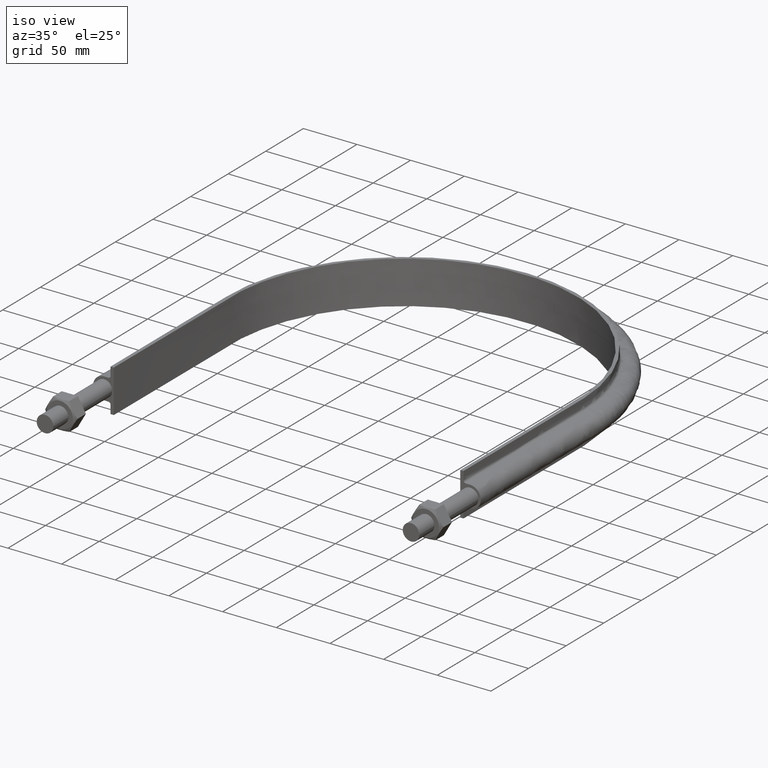
[diagram: clean part render]
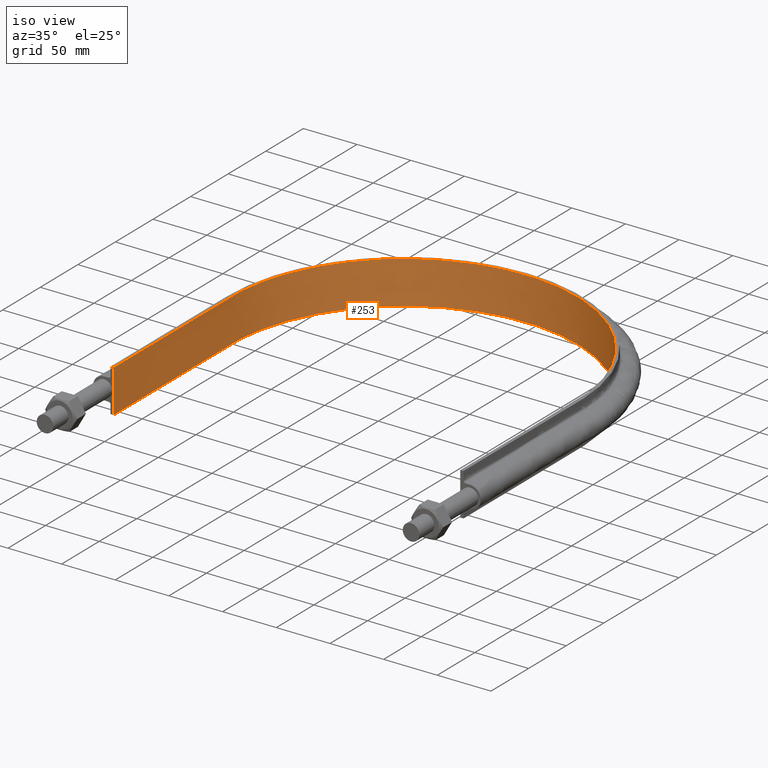
[diagram: tour spotlight — one face highlighted and labeled with its STEP entity id]
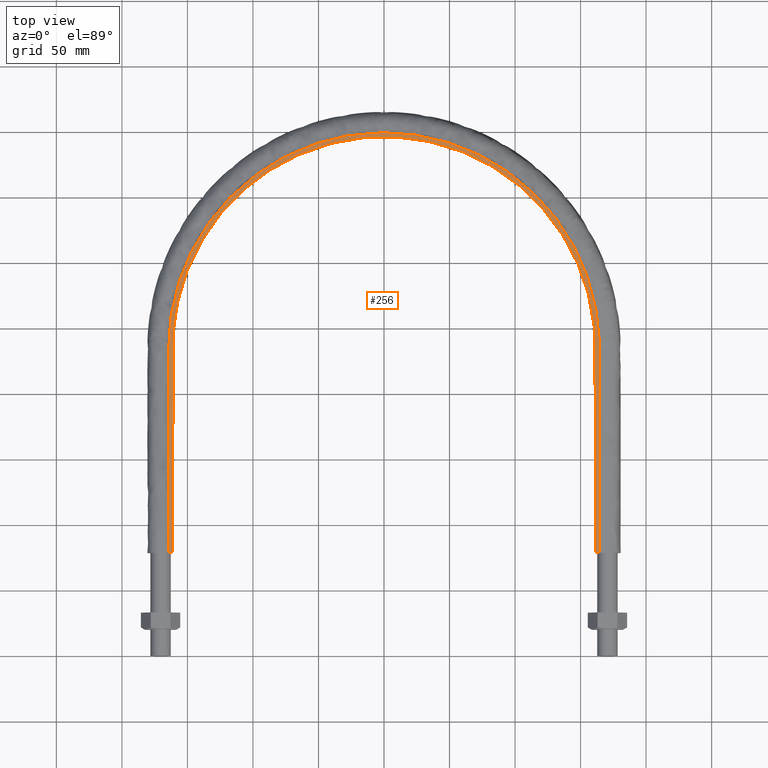
[diagram: tour spotlight — one face highlighted and labeled with its STEP entity id]
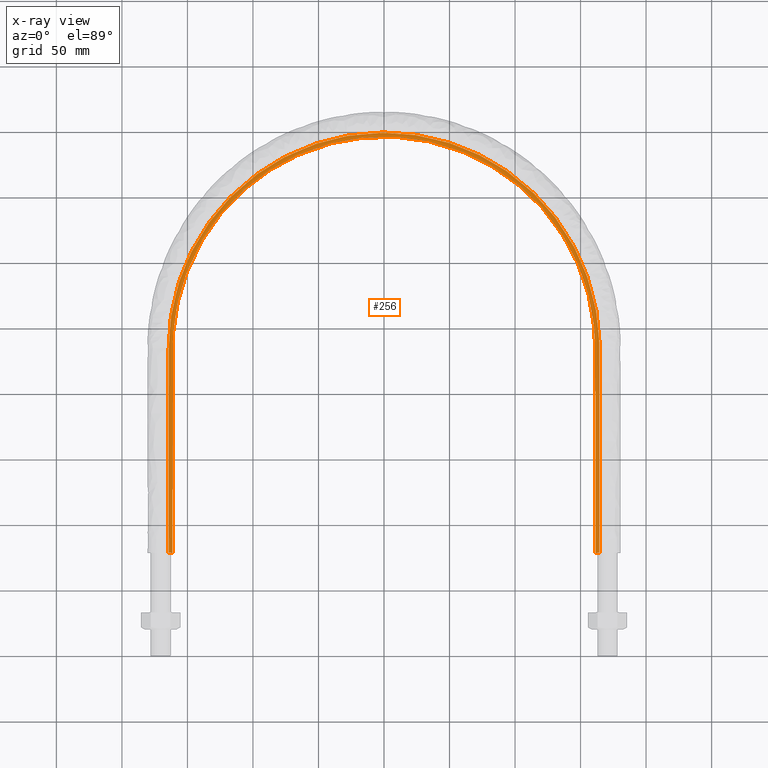
[diagram: x-ray of the same camera — body ghosted, this tour face saturated]
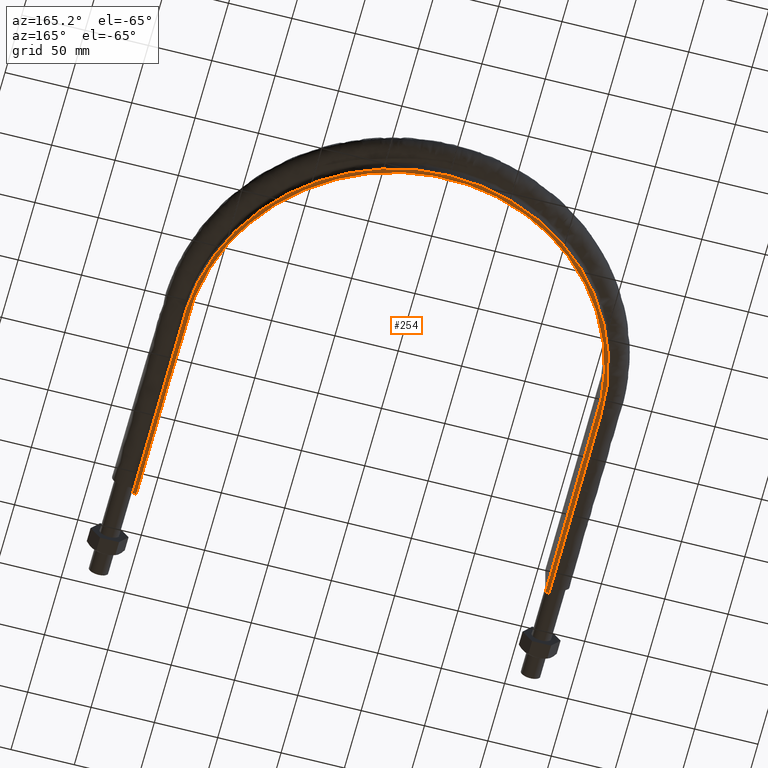
[diagram: tour spotlight — one face highlighted and labeled with its STEP entity id]
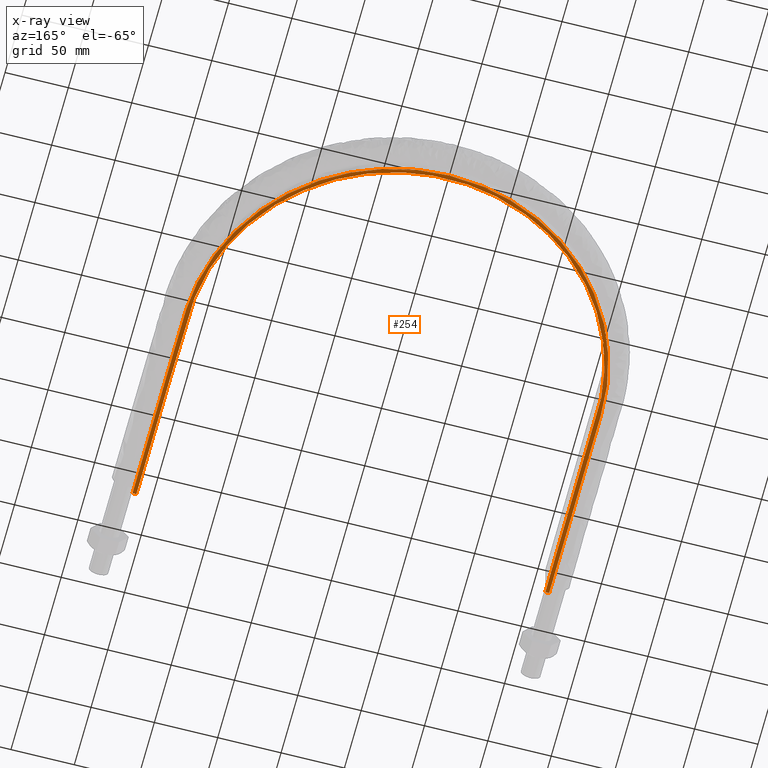
[diagram: x-ray of the same camera — body ghosted, this tour face saturated]
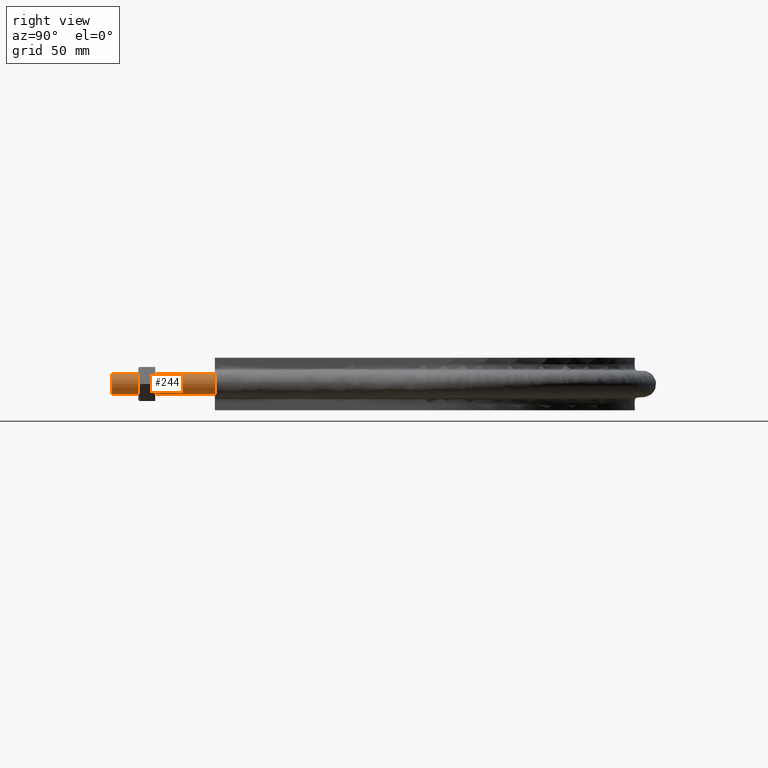
[diagram: tour spotlight — one face highlighted and labeled with its STEP entity id]
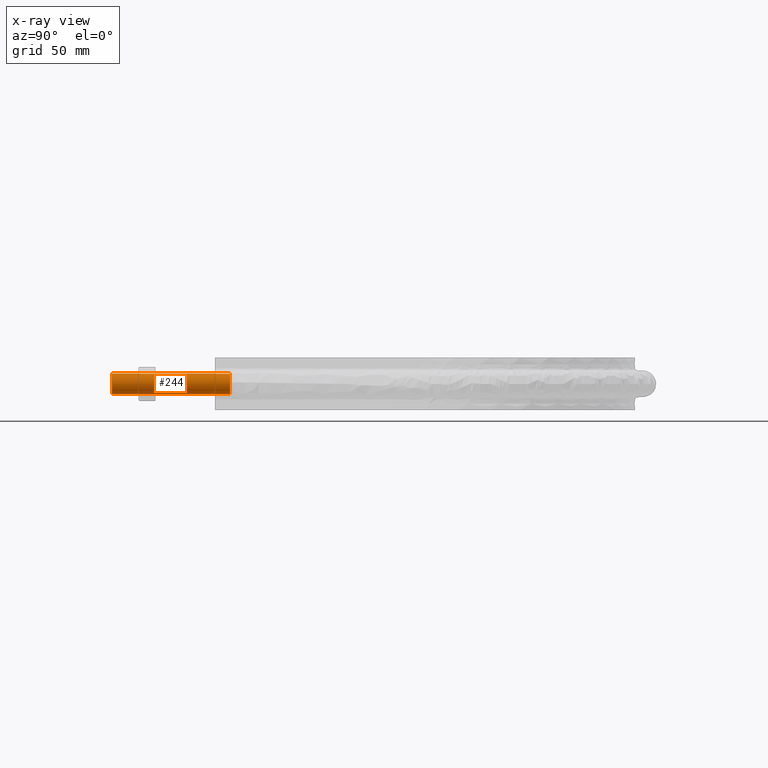
[diagram: x-ray of the same camera — body ghosted, this tour face saturated]
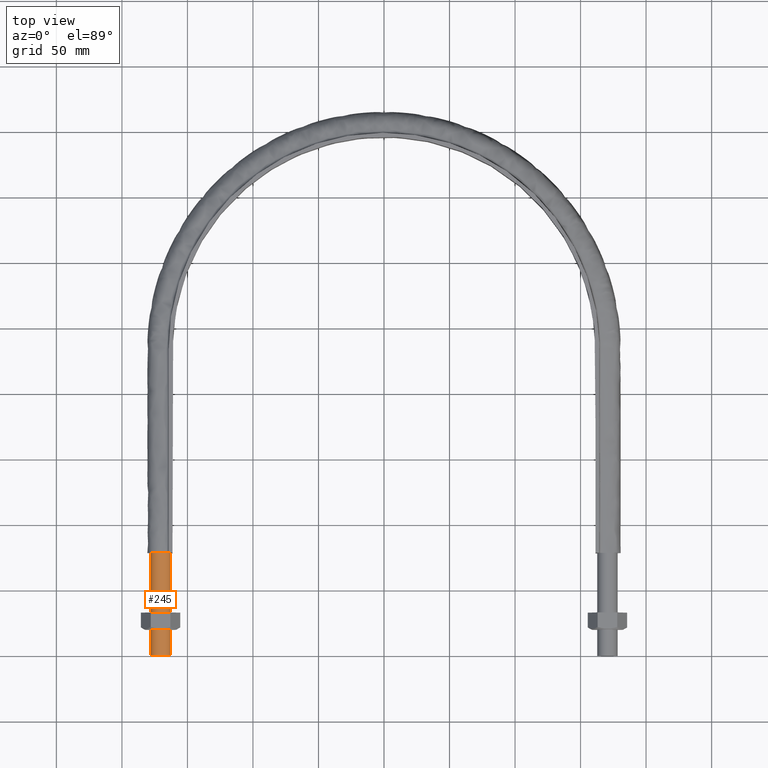
[diagram: tour spotlight — one face highlighted and labeled with its STEP entity id]
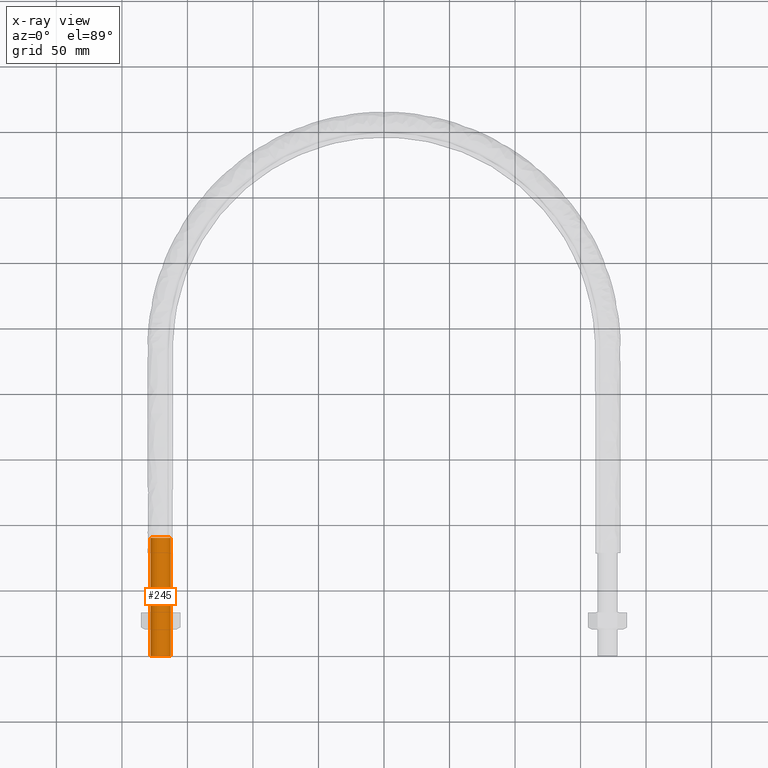
[diagram: x-ray of the same camera — body ghosted, this tour face saturated]
A machine part: a face-by-face anatomy tour. The part has 40 B-rep faces; the first image is the clean iso view, then the 5 largest visible faces are spotlighted one at a time (largest first), each with its STEP entity span.

Face 1 — iso view, entity #253. In plain terms, the highlighted face is a SurfaceOfExtrusion surface.
Definition (entity closure, byte-faithful):
#253 = ADVANCED_FACE( '', ( #347 ), #348, .T. );
#347 = FACE_OUTER_BOUND( '', #842, .T. );
#348 = SURFACE_OF_LINEAR_EXTRUSION( '', #843, #844 );
#842 = EDGE_LOOP( '', ( #1753, #1754, #1755, #1756 ) );
#843 = B_SPLINE_CURVE_WITH_KNOTS( '', 3, ( #1757, #1758, #1759, #1760, #1761, #1762, #1763, #1764, #1765, #1766, #1767, #1768, #1769, #1770, #1771, #1772, #1773, #1774 ), .UNSPECIFIED., .F., .F., ( 4, 3, 1, 1, 1, 1, 1, 1, 1, 1, 3, 4 ), ( -11.0000000000000, -10.0000000000000, -9.00000000000000, -8.00000000000000, -7.00000000000000, -6.00000000000000, -5.00000000000000, -4.00000000000000, -3.00000000000000, -2.00000000000000, -1.00000000000000, 0.000000000000000 ), .UNSPECIFIED. );
#844 = VECTOR( '', #1775, 1000.00000000000 );
#1753 = ORIENTED_EDGE( '', *, *, #1982, .T. );
#1754 = ORIENTED_EDGE( '', *, *, #1983, .F. );
#1755 = ORIENTED_EDGE( '', *, *, #1977, .F. );
#1756 = ORIENTED_EDGE( '', *, *, #1984, .T. );
#1757 = CARTESIAN_POINT( '', ( -161.400000000000, 78.5100000000001, -521.637844225282 ) );
#1758 = CARTESIAN_POINT( '', ( -161.400000000000, 130.543333333333, -521.637844225282 ) );
#1759 = CARTESIAN_POINT( '', ( -161.400000000000, 182.576666666667, -521.637844225282 ) );
#1760 = CARTESIAN_POINT( '', ( -161.400000000000, 234.610000000000, -521.637844225282 ) );
#1761 = CARTESIAN_POINT( '', ( -161.400000000000, 253.377198593415, -521.637844225282 ) );
#1762 = CARTESIAN_POINT( '', ( -154.777803559236, 290.949605256109, -521.637844225282 ) );
#1763 = CARTESIAN_POINT( '', ( -126.176021511748, 340.482890510073, -521.637844225282 ) );
#1764 = CARTESIAN_POINT( '', ( -82.3555491101910, 377.254353924046, -521.637844225282 ) );
#1765 = CARTESIAN_POINT( '', ( -28.6017820474880, 396.818694818595, -521.637844225282 ) );
#1766 = CARTESIAN_POINT( '', ( 28.6017820474882, 396.818694818595, -521.637844225282 ) );
#1767 = CARTESIAN_POINT( '', ( 82.3555491101912, 377.254353924046, -521.637844225282 ) );
#1768 = CARTESIAN_POINT( '', ( 126.176021511748, 340.482890510073, -521.637844225282 ) );
#1769 = CARTESIAN_POINT( '', ( 154.777803559236, 290.949605256109, -521.637844225282 ) );
#1770 = CARTESIAN_POINT( '', ( 161.400000000000, 253.377198593415, -521.637844225282 ) );
#1771 = CARTESIAN_POINT( '', ( 161.400000000000, 234.610000000000, -521.637844225282 ) );
#1772 = CARTESIAN_POINT( '', ( 161.400000000000, 182.576666666667, -521.637844225282 ) );
#1773 = CARTESIAN_POINT( '', ( 161.400000000000, 130.543333333333, -521.637844225282 ) );
#1774 = CARTESIAN_POINT( '', ( 161.400000000000, 78.5100000000000, -521.637844225282 ) );
#1775 = DIRECTION( '', ( 0.000000000000000, 0.000000000000000, 1.00000000000000 ) );
#1977 = EDGE_CURVE( '', #2095, #2096, #2097, .T. );
#1982 = EDGE_CURVE( '', #2104, #2105, #2106, .T. );
#1983 = EDGE_CURVE( '', #2096, #2105, #2107, .T. );
#1984 = EDGE_CURVE( '', #2095, #2104, #2108, .T. );
#2095 = VERTEX_POINT( '', #2566 );
#2096 = VERTEX_POINT( '', #2567 );
#2097 = LINE( '', #2568, #2569 );
#2104 = VERTEX_POINT( '', #2610 );
#2105 = VERTEX_POINT( '', #2611 );
#2106 = LINE( '', #2612, #2613 );
#2107 = B_SPLINE_CURVE_WITH_KNOTS( '', 3, ( #2614, #2615, #2616, #2617, #2618, #2619, #2620, #2621, #2622, #2623, #2624, #2625, #2626, #2627, #2628, #2629, #2630, #2631 ), .UNSPECIFIED., .F., .F., ( 4, 3, 1, 1, 1, 1, 1, 1, 1, 1, 3, 4 ), ( -11.0000000000000, -10.0000000000000, -9.00000000000000, -8.00000000000000, -7.00000000000000, -6.00000000000000, -5.00000000000000, -4.00000000000000, -3.00000000000000, -2.00000000000000, -1.00000000000000, 0.000000000000000 ), .UNSPECIFIED. );
#2108 = B_SPLINE_CURVE_WITH_KNOTS( '', 3, ( #2632, #2633, #2634, #2635, #2636, #2637, #2638, #2639, #2640, #2641, #2642, #2643, #2644, #2645, #2646, #2647, #2648, #2649 ), .UNSPECIFIED., .F., .F., ( 4, 3, 1, 1, 1, 1, 1, 1, 1, 1, 3, 4 ), ( -11.0000000000000, -10.0000000000000, -9.00000000000000, -8.00000000000000, -7.00000000000000, -6.00000000000000, -5.00000000000000, -4.00000000000000, -3.00000000000000, -2.00000000000000, -1.00000000000000, 0.000000000000000 ), .UNSPECIFIED. );
#2566 = CARTESIAN_POINT( '', ( -161.400000000000, 78.5100000000001, -20.0000000000000 ) );
#2567 = CARTESIAN_POINT( '', ( -161.400000000000, 78.5100000000001, 20.0000000000000 ) );
#2568 = CARTESIAN_POINT( '', ( -161.400000000000, 78.5100000000001, -521.637844225282 ) );
#2569 = VECTOR( '', #2999, 1000.00000000000 );
#2610 = CARTESIAN_POINT( '', ( 161.400000000000, 78.5100000000000, -20.0000000000000 ) );
#2611 = CARTESIAN_POINT( '', ( 161.400000000000, 78.5100000000000, 20.0000000000000 ) );
#2612 = CARTESIAN_POINT( '', ( 161.400000000000, 78.5100000000000, -521.637844225282 ) );
#2613 = VECTOR( '', #3003, 1000.00000000000 );
#2614 = CARTESIAN_POINT( '', ( -161.400000000000, 78.5100000000001, 20.0000000000000 ) );
#2615 = CARTESIAN_POINT( '', ( -161.400000000000, 130.543333333333, 20.0000000000000 ) );
#2616 = CARTESIAN_POINT( '', ( -161.400000000000, 182.576666666667, 20.0000000000000 ) );
#2617 = CARTESIAN_POINT( '', ( -161.400000000000, 234.610000000000, 20.0000000000000 ) );
#2618 = CARTESIAN_POINT( '', ( -161.400000000000, 253.377198593415, 20.0000000000000 ) );
#2619 = CARTESIAN_POINT( '', ( -154.777803559236, 290.949605256109, 20.0000000000000 ) );
#2620 = CARTESIAN_POINT( '', ( -126.176021511748, 340.482890510073, 20.0000000000000 ) );
#2621 = CARTESIAN_POINT( '', ( -82.3555491101910, 377.254353924046, 20.0000000000000 ) );
#2622 = CARTESIAN_POINT( '', ( -28.6017820474880, 396.818694818595, 20.0000000000000 ) );
#2623 = CARTESIAN_POINT( '', ( 28.6017820474882, 396.818694818595, 20.0000000000000 ) );
#2624 = CARTESIAN_POINT( '', ( 82.3555491101912, 377.254353924046, 20.0000000000000 ) );
#2625 = CARTESIAN_POINT( '', ( 126.176021511748, 340.482890510073, 20.0000000000000 ) );
#2626 = CARTESIAN_POINT( '', ( 154.777803559236, 290.949605256109, 20.0000000000000 ) );
#2627 = CARTESIAN_POINT( '', ( 161.400000000000, 253.377198593415, 20.0000000000000 ) );
#2628 = CARTESIAN_POINT( '', ( 161.400000000000, 234.610000000000, 20.0000000000000 ) );
#2629 = CARTESIAN_POINT( '', ( 161.400000000000, 182.576666666667, 20.0000000000000 ) );
#2630 = CARTESIAN_POINT( '', ( 161.400000000000, 130.543333333333, 20.0000000000000 ) );
#2631 = CARTESIAN_POINT( '', ( 161.400000000000, 78.5100000000000, 20.0000000000000 ) );
#2632 = CARTESIAN_POINT( '', ( -161.400000000000, 78.5100000000001, -20.0000000000000 ) );
#2633 = CARTESIAN_POINT( '', ( -161.400000000000, 130.543333333333, -20.0000000000000 ) );
#2634 = CARTESIAN_POINT( '', ( -161.400000000000, 182.576666666667, -20.0000000000000 ) );
#2635 = CARTESIAN_POINT( '', ( -161.400000000000, 234.610000000000, -20.0000000000000 ) );
#2636 = CARTESIAN_POINT( '', ( -161.400000000000, 253.377198593415, -20.0000000000000 ) );
#2637 = CARTESIAN_POINT( '', ( -154.777803559236, 290.949605256109, -20.0000000000000 ) );
#2638 = CARTESIAN_POINT( '', ( -126.176021511748, 340.482890510073, -20.0000000000000 ) );
#2639 = CARTESIAN_POINT( '', ( -82.3555491101910, 377.254353924046, -20.0000000000000 ) );
#2640 = CARTESIAN_POINT( '', ( -28.6017820474880, 396.818694818595, -20.0000000000000 ) );
#2641 = CARTESIAN_POINT( '', ( 28.6017820474882, 396.818694818595, -20.0000000000000 ) );
#2642 = CARTESIAN_POINT( '', ( 82.3555491101912, 377.254353924046, -20.0000000000000 ) );
#2643 = CARTESIAN_POINT( '', ( 126.176021511748, 340.482890510073, -20.0000000000000 ) );
#2644 = CARTESIAN_POINT( '', ( 154.777803559236, 290.949605256109, -20.0000000000000 ) );
#2645 = CARTESIAN_POINT( '', ( 161.400000000000, 253.377198593415, -20.0000000000000 ) );
#2646 = CARTESIAN_POINT( '', ( 161.400000000000, 234.610000000000, -20.0000000000000 ) );
#2647 = CARTESIAN_POINT( '', ( 161.400000000000, 182.576666666667, -20.0000000000000 ) );
#2648 = CARTESIAN_POINT( '', ( 161.400000000000, 130.543333333333, -20.0000000000000 ) );
#2649 = CARTESIAN_POINT( '', ( 161.400000000000, 78.5100000000000, -20.0000000000000 ) );
#2999 = DIRECTION( '', ( 0.000000000000000, 0.000000000000000, 1.00000000000000 ) );
#3003 = DIRECTION( '', ( 0.000000000000000, 0.000000000000000, 1.00000000000000 ) );

Face 2 — top view, entity #256. An x-ray twin of the same camera follows (body ghosted, this face saturated) — the face is partly hidden behind the body. In plain terms, the highlighted planar face has unit normal (0, 0, 1).
Definition (entity closure, byte-faithful):
#256 = ADVANCED_FACE( '', ( #353 ), #354, .T. );
#353 = FACE_OUTER_BOUND( '', #850, .T. );
#354 = PLANE( '', #851 );
#850 = EDGE_LOOP( '', ( #1898, #1899, #1900, #1901 ) );
#851 = AXIS2_PLACEMENT_3D( '', #1902, #1903, #1904 );
#1898 = ORIENTED_EDGE( '', *, *, #1978, .T. );
#1899 = ORIENTED_EDGE( '', *, *, #1983, .T. );
#1900 = ORIENTED_EDGE( '', *, *, #1989, .T. );
#1901 = ORIENTED_EDGE( '', *, *, #1973, .F. );
#1902 = CARTESIAN_POINT( '', ( 200.000000000000, 478.510000000000, 20.0000000000000 ) );
#1903 = DIRECTION( '', ( 0.000000000000000, 0.000000000000000, 1.00000000000000 ) );
#1904 = DIRECTION( '', ( 1.00000000000000, 0.000000000000000, 0.000000000000000 ) );
#1973 = EDGE_CURVE( '', #2086, #2088, #2089, .T. );
#1978 = EDGE_CURVE( '', #2086, #2096, #2098, .F. );
#1983 = EDGE_CURVE( '', #2096, #2105, #2107, .T. );
#1989 = EDGE_CURVE( '', #2105, #2088, #2115, .F. );
#2086 = VERTEX_POINT( '', #2405 );
#2088 = VERTEX_POINT( '', #2408 );
#2089 = B_SPLINE_CURVE_WITH_KNOTS( '', 3, ( #2409, #2410, #2411, #2412, #2413, #2414, #2415, #2416, #2417, #2418, #2419, #2420, #2421, #2422, #2423, #2424, #2425, #2426, #2427, #2428, #2429, #2430, #2431, #2432, #2433, #2434, #2435, #2436, #2437, #2438, #2439, #2440, #2441, #2442, #2443, #2444, #2445, #2446, #2447, #2448, #2449, #2450, #2451, #2452, #2453, #2454, #2455, #2456, #2457, #2458, #2459, #2460, #2461, #2462, #2463, #2464, #2465, #2466, #2467, #2468, #2469, #2470, #2471, #2472, #2473, #2474, #2475, #2476, #2477, #2478, #2479, #2480, #2481, #2482, #2483, #2484, #2485, #2486, #2487, #2488, #2489, #2490, #2491, #2492, #2493, #2494, #2495, #2496, #2497, #2498, #2499, #2500, #2501, #2502, #2503, #2504, #2505, #2506, #2507, #2508, #2509, #2510, #2511, #2512, #2513, #2514, #2515, #2516, #2517, #2518, #2519, #2520, #2521, #2522, #2523, #2524, #2525, #2526, #2527, #2528, #2529, #2530, #2531, #2532, #2533, #2534, #2535, #2536, #2537, #2538, #2539 ), .UNSPECIFIED., .F., .F., ( 4, 1, 1, 1, 1, 2, 2, 2, 2, 2, 2, 2, 2, 2, 2, 2, 2, 2, 2, 2, 2, 2, 2, 2, 2, 2, 2, 2, 2, 2, 2, 2, 2, 2, 2, 2, 2, 2, 2, 2, 2, 2, 2, 2, 2, 2, 2, 2, 2, 2, 2, 2, 2, 2, 2, 2, 1, 2, 2, 2, 2, 2, 2, 2, 2, 1, 1, 1, 1, 4 ), ( 0.000000000000000, 0.104054729085104, 0.130068411356380, 0.143075252492018, 0.149578673059837, 0.152830383343746, 0.156082093627656, 0.159333803911565, 0.162585514195475, 0.169088934763294, 0.182095775898932, 0.195102617034570, 0.208109458170209, 0.221116299305847, 0.227619719873666, 0.234123140441485, 0.247129981577123, 0.260136822712762, 0.273143663848400, 0.276395374132309, 0.279647084416219, 0.286150504984038, 0.299157346119676, 0.312164187255314, 0.325171028390952, 0.331674448958772, 0.334926159242681, 0.338177869526591, 0.351184710662229, 0.364191551797868, 0.377198392933506, 0.383701813501326, 0.386953523785235, 0.390205234069145, 0.403212075204783, 0.416218916340422, 0.429225757476060, 0.442232598611699, 0.448736019179518, 0.455239439747338, 0.468246280882976, 0.481253122018615, 0.494259963154253, 0.500763383722072, 0.507266804289892, 0.520273645425530, 0.533280486561169, 0.546287327696808, 0.552790748264627, 0.556042458548537, 0.559294168832446, 0.572301009968085, 0.585307851103724, 0.598314692239363, 0.611321533375002, 0.614573243658912, 0.617824953942821, 0.624328374510641, 0.637335215646280, 0.650342056781918, 0.663348897917557, 0.669852318485376, 0.673104028769286, 0.676355739053196, 0.679607449337105, 0.682859159621015, 0.689362580188834, 0.702369421324473, 0.728383103595750, 0.832437832680860 ), .UNSPECIFIED. );
#2096 = VERTEX_POINT( '', #2567 );
#2098 = LINE( '', #2570, #2571 );
#2105 = VERTEX_POINT( '', #2611 );
#2107 = B_SPLINE_CURVE_WITH_KNOTS( '', 3, ( #2614, #2615, #2616, #2617, #2618, #2619, #2620, #2621, #2622, #2623, #2624, #2625, #2626, #2627, #2628, #2629, #2630, #2631 ), .UNSPECIFIED., .F., .F., ( 4, 3, 1, 1, 1, 1, 1, 1, 1, 1, 3, 4 ), ( -11.0000000000000, -10.0000000000000, -9.00000000000000, -8.00000000000000, -7.00000000000000, -6.00000000000000, -5.00000000000000, -4.00000000000000, -3.00000000000000, -2.00000000000000, -1.00000000000000, 0.000000000000000 ), .UNSPECIFIED. );
#2115 = LINE( '', #2897, #2898 );
#2405 = CARTESIAN_POINT( '', ( -164.400000000000, 78.5100000000001, 20.0000000000000 ) );
#2408 = CARTESIAN_POINT( '', ( 164.400000000000, 78.5099999999999, 20.0000000000000 ) );
#2409 = CARTESIAN_POINT( '', ( -164.400000000000, 78.5100000000001, 20.0000000000000 ) );
#2410 = CARTESIAN_POINT( '', ( -164.400000000000, 113.194956691567, 20.0000000000000 ) );
#2411 = CARTESIAN_POINT( '', ( -164.400000000000, 156.551152556026, 20.0000000000000 ) );
#2412 = CARTESIAN_POINT( '', ( -164.400000000000, 204.242968006930, 20.0000000000000 ) );
#2413 = CARTESIAN_POINT( '', ( -164.400000000000, 219.417636559491, 20.0000000000000 ) );
#2414 = CARTESIAN_POINT( '', ( -164.400000000000, 227.004970835771, 20.0000000000000 ) );
#2415 = CARTESIAN_POINT( '', ( -164.400000000000, 230.256685525605, 20.0000000000000 ) );
#2416 = CARTESIAN_POINT( '', ( -164.400000000000, 232.424495318828, 20.0000000000000 ) );
#2417 = CARTESIAN_POINT( '', ( -164.401112814939, 233.508402047335, 20.0000000000000 ) );
#2418 = CARTESIAN_POINT( '', ( -164.397791436545, 235.676206372966, 20.0000000000000 ) );
#2419 = CARTESIAN_POINT( '', ( -164.389397229220, 236.760097451187, 20.0000000000000 ) );
#2420 = CARTESIAN_POINT( '', ( -164.346347317781, 238.927836376435, 20.0000000000000 ) );
#2421 = CARTESIAN_POINT( '', ( -164.314015247172, 240.011688048584, 20.0000000000000 ) );
#2422 = CARTESIAN_POINT( '', ( -164.184658021981, 243.263189792925, 20.0000000000000 ) );
#2423 = CARTESIAN_POINT( '', ( -164.054986387869, 245.432649531981, 20.0000000000000 ) );
#2424 = CARTESIAN_POINT( '', ( -163.540089866603, 251.903443163607, 20.0000000000000 ) );
#2425 = CARTESIAN_POINT( '', ( -163.028857186242, 256.178647842781, 20.0000000000000 ) );
#2426 = CARTESIAN_POINT( '', ( -161.680784922928, 264.654119101841, 20.0000000000000 ) );
#2427 = CARTESIAN_POINT( '', ( -160.843839994309, 268.854361436529, 20.0000000000000 ) );
#2428 = CARTESIAN_POINT( '', ( -158.845991034650, 277.180287246157, 20.0000000000000 ) );
#2429 = CARTESIAN_POINT( '', ( -157.684954010361, 281.305940112837, 20.0000000000000 ) );
#2430 = CARTESIAN_POINT( '', ( -155.032434907612, 289.481194251215, 20.0000000000000 ) );
#2431 = CARTESIAN_POINT( '', ( -153.540637667279, 293.530722988728, 20.0000000000000 ) );
#2432 = CARTESIAN_POINT( '', ( -151.046446265379, 299.545983905582, 20.0000000000000 ) );
#2433 = CARTESIAN_POINT( '', ( -150.176639375753, 301.530591569500, 20.0000000000000 ) );
#2434 = CARTESIAN_POINT( '', ( -148.365677489265, 305.451034189671, 20.0000000000000 ) );
#2435 = CARTESIAN_POINT( '', ( -147.423966722703, 307.388338955489, 20.0000000000000 ) );
#2436 = CARTESIAN_POINT( '', ( -144.492313373275, 313.132875216610, 20.0000000000000 ) );
#2437 = CARTESIAN_POINT( '', ( -142.395491839972, 316.872502291722, 20.0000000000000 ) );
#2438 = CARTESIAN_POINT( '', ( -137.921089039272, 324.174166757929, 20.0000000000000 ) );
#2439 = CARTESIAN_POINT( '', ( -135.543392362290, 327.736131148699, 20.0000000000000 ) );
#2440 = CARTESIAN_POINT( '', ( -130.504111697184, 334.680491951786, 20.0000000000000 ) );
#2441 = CARTESIAN_POINT( '', ( -127.842299055249, 338.062743733114, 20.0000000000000 ) );
#2442 = CARTESIAN_POINT( '', ( -124.331524748107, 342.174483348528, 20.0000000000000 ) );
#2443 = CARTESIAN_POINT( '', ( -123.620193252737, 342.991026751503, 20.0000000000000 ) );
#2444 = CARTESIAN_POINT( '', ( -122.179027254969, 344.612409802347, 20.0000000000000 ) );
#2445 = CARTESIAN_POINT( '', ( -121.449202472701, 345.417189981231, 20.0000000000000 ) );
#2446 = CARTESIAN_POINT( '', ( -119.241901422656, 347.803147571150, 20.0000000000000 ) );
#2447 = CARTESIAN_POINT( '', ( -117.743364650799, 349.359649553353, 20.0000000000000 ) );
#2448 = CARTESIAN_POINT( '', ( -113.168603753488, 353.929094656281, 20.0000000000000 ) );
#2449 = CARTESIAN_POINT( '', ( -110.013226002103, 356.841973084914, 20.0000000000000 ) );
#2450 = CARTESIAN_POINT( '', ( -103.496070778982, 362.406802862439, 20.0000000000000 ) );
#2451 = CARTESIAN_POINT( '', ( -100.134198242746, 365.058634032378, 20.0000000000000 ) );
#2452 = CARTESIAN_POINT( '', ( -93.2034983802209, 370.100667582666, 20.0000000000000 ) );
#2453 = CARTESIAN_POINT( '', ( -89.6348208454275, 372.491059326922, 20.0000000000000 ) );
#2454 = CARTESIAN_POINT( '', ( -84.1216642835617, 375.874200301253, 20.0000000000000 ) );
#2455 = CARTESIAN_POINT( '', ( -82.2572525184597, 376.968169226844, 20.0000000000000 ) );
#2456 = CARTESIAN_POINT( '', ( -79.4199251738941, 378.557658096216, 20.0000000000000 ) );
#2457 = CARTESIAN_POINT( '', ( -78.4664937879975, 379.079355636749, 20.0000000000000 ) );
#2458 = CARTESIAN_POINT( '', ( -76.5540001382329, 380.101226290094, 20.0000000000000 ) );
#2459 = CARTESIAN_POINT( '', ( -75.5941946256060, 380.601833763865, 20.0000000000000 ) );
#2460 = CARTESIAN_POINT( '', ( -70.7776054635568, 383.053904702584, 20.0000000000000 ) );
#2461 = CARTESIAN_POINT( '', ( -66.8682015972482, 384.852656297693, 20.0000000000000 ) );
#2462 = CARTESIAN_POINT( '', ( -58.9404340251167, 388.133941467269, 20.0000000000000 ) );
#2463 = CARTESIAN_POINT( '', ( -54.9221074398449, 389.616582771218, 20.0000000000000 ) );
#2464 = CARTESIAN_POINT( '', ( -46.7771352731434, 392.267507183330, 20.0000000000000 ) );
#2465 = CARTESIAN_POINT( '', ( -42.6507752742783, 393.436619095514, 20.0000000000000 ) );
#2466 = CARTESIAN_POINT( '', ( -36.3779362801154, 394.948540612920, 20.0000000000000 ) );
#2467 = CARTESIAN_POINT( '', ( -34.2731054845731, 395.412219626070, 20.0000000000000 ) );
#2468 = CARTESIAN_POINT( '', ( -31.0947095102841, 396.046358265767, 20.0000000000000 ) );
#2469 = CARTESIAN_POINT( '', ( -30.0317191361183, 396.247507583014, 20.0000000000000 ) );
#2470 = CARTESIAN_POINT( '', ( -27.8986333936848, 396.629186444373, 20.0000000000000 ) );
#2471 = CARTESIAN_POINT( '', ( -26.8273434139387, 396.809901238471, 20.0000000000000 ) );
#2472 = CARTESIAN_POINT( '', ( -21.4696015124212, 397.658929575962, 20.0000000000000 ) );
#2473 = CARTESIAN_POINT( '', ( -17.1843900397935, 398.163087914422, 20.0000000000000 ) );
#2474 = CARTESIAN_POINT( '', ( -8.61585586475004, 398.834704046002, 20.0000000000000 ) );
#2475 = CARTESIAN_POINT( '', ( -4.33253349701473, 399.002102177489, 20.0000000000000 ) );
#2476 = CARTESIAN_POINT( '', ( 4.23224776210572, 399.004706890969, 20.0000000000000 ) );
#2477 = CARTESIAN_POINT( '', ( 8.51370656733813, 398.839898114999, 20.0000000000000 ) );
#2478 = CARTESIAN_POINT( '', ( 17.0747401534021, 398.174426027000, 20.0000000000000 ) );
#2479 = CARTESIAN_POINT( '', ( 21.3543151187259, 397.673795603418, 20.0000000000000 ) );
#2480 = CARTESIAN_POINT( '', ( 27.7722131616461, 396.661798633603, 20.0000000000000 ) );
#2481 = CARTESIAN_POINT( '', ( 29.9140086384709, 396.280063374135, 20.0000000000000 ) );
#2482 = CARTESIAN_POINT( '', ( 34.1597071946010, 395.435755209703, 20.0000000000000 ) );
#2483 = CARTESIAN_POINT( '', ( 36.2679191606644, 394.972624095614, 20.0000000000000 ) );
#2484 = CARTESIAN_POINT( '', ( 42.5495878486316, 393.462944409612, 20.0000000000000 ) );
#2485 = CARTESIAN_POINT( '', ( 46.6801348271532, 392.296270371900, 20.0000000000000 ) );
#2486 = CARTESIAN_POINT( '', ( 54.8292840046264, 389.649533827340, 20.0000000000000 ) );
#2487 = CARTESIAN_POINT( '', ( 58.8478709900290, 388.169428730290, 20.0000000000000 ) );
#2488 = CARTESIAN_POINT( '', ( 66.7727743121286, 384.894917799148, 20.0000000000000 ) );
#2489 = CARTESIAN_POINT( '', ( 70.6791112233455, 383.100569563252, 20.0000000000000 ) );
#2490 = CARTESIAN_POINT( '', ( 76.4520718313795, 380.166765884870, 20.0000000000000 ) );
#2491 = CARTESIAN_POINT( '', ( 78.3619473175714, 379.148393463063, 20.0000000000000 ) );
#2492 = CARTESIAN_POINT( '', ( 82.1521398445280, 377.028900000013, 20.0000000000000 ) );
#2493 = CARTESIAN_POINT( '', ( 84.0218361506236, 375.933662305822, 20.0000000000000 ) );
#2494 = CARTESIAN_POINT( '', ( 89.5459979753104, 372.549008376609, 20.0000000000000 ) );
#2495 = CARTESIAN_POINT( '', ( 93.1199772103812, 370.158194645048, 20.0000000000000 ) );
#2496 = CARTESIAN_POINT( '', ( 100.057978294405, 365.117239771998, 20.0000000000000 ) );
#2497 = CARTESIAN_POINT( '', ( 103.421801536321, 362.466853322402, 20.0000000000000 ) );
#2498 = CARTESIAN_POINT( '', ( 109.940193148712, 356.907620719414, 20.0000000000000 ) );
#2499 = CARTESIAN_POINT( '', ( 113.094804278789, 353.998827380248, 20.0000000000000 ) );
#2500 = CARTESIAN_POINT( '', ( 117.666768975038, 349.438073768968, 20.0000000000000 ) );
#2501 = CARTESIAN_POINT( '', ( 119.164117876877, 347.884919181135, 20.0000000000000 ) );
#2502 = CARTESIAN_POINT( '', ( 121.369267704193, 345.504702647791, 20.0000000000000 ) );
#2503 = CARTESIAN_POINT( '', ( 122.097504670187, 344.702882136051, 20.0000000000000 ) );
#2504 = CARTESIAN_POINT( '', ( 123.540195090083, 343.082216503168, 20.0000000000000 ) );
#2505 = CARTESIAN_POINT( '', ( 124.254377380737, 342.263630681837, 20.0000000000000 ) );
#2506 = CARTESIAN_POINT( '', ( 127.774789921493, 338.146514758157, 20.0000000000000 ) );
#2507 = CARTESIAN_POINT( '', ( 130.442435347836, 334.761097001741, 20.0000000000000 ) );
#2508 = CARTESIAN_POINT( '', ( 135.490619375253, 327.813142423084, 20.0000000000000 ) );
#2509 = CARTESIAN_POINT( '', ( 137.871345881558, 324.250721521454, 20.0000000000000 ) );
#2510 = CARTESIAN_POINT( '', ( 142.349926805875, 316.951373103872, 20.0000000000000 ) );
#2511 = CARTESIAN_POINT( '', ( 144.447832885233, 313.214477458319, 20.0000000000000 ) );
#2512 = CARTESIAN_POINT( '', ( 148.357643246088, 305.564248803822, 20.0000000000000 ) );
#2513 = CARTESIAN_POINT( '', ( 150.170208090249, 301.651323302578, 20.0000000000000 ) );
#2514 = CARTESIAN_POINT( '', ( 152.249962193094, 296.645450810820, 20.0000000000000 ) );
#2515 = CARTESIAN_POINT( '', ( 152.656898188072, 295.637746950869, 20.0000000000000 ) );
#2516 = CARTESIAN_POINT( '', ( 153.448598221972, 293.619489616334, 20.0000000000000 ) );
#2517 = CARTESIAN_POINT( '', ( 154.604082453027, 290.585090430418, 20.0000000000000 ) );
#2518 = CARTESIAN_POINT( '', ( 155.664224929574, 287.529838845204, 20.0000000000000 ) );
#2519 = CARTESIAN_POINT( '', ( 157.659619292076, 281.392020586263, 20.0000000000000 ) );
#2520 = CARTESIAN_POINT( '', ( 158.823627411517, 277.263779806066, 20.0000000000000 ) );
#2521 = CARTESIAN_POINT( '', ( 160.826483259109, 268.936181720182, 20.0000000000000 ) );
#2522 = CARTESIAN_POINT( '', ( 161.665372921475, 264.736833586017, 20.0000000000000 ) );
#2523 = CARTESIAN_POINT( '', ( 163.017050638178, 256.266814936669, 20.0000000000000 ) );
#2524 = CARTESIAN_POINT( '', ( 163.530043425187, 251.996189199007, 20.0000000000000 ) );
#2525 = CARTESIAN_POINT( '', ( 164.048104978438, 245.535260317739, 20.0000000000000 ) );
#2526 = CARTESIAN_POINT( '', ( 164.178967102381, 243.370129820410, 20.0000000000000 ) );
#2527 = CARTESIAN_POINT( '', ( 164.310513690544, 240.116451581558, 20.0000000000000 ) );
#2528 = CARTESIAN_POINT( '', ( 164.343561000334, 239.031880269033, 20.0000000000000 ) );
#2529 = CARTESIAN_POINT( '', ( 164.388013795319, 236.862713802182, 20.0000000000000 ) );
#2530 = CARTESIAN_POINT( '', ( 164.397282425713, 235.778116293781, 20.0000000000000 ) );
#2531 = CARTESIAN_POINT( '', ( 164.401463363768, 233.608905461278, 20.0000000000000 ) );
#2532 = CARTESIAN_POINT( '', ( 164.400000000000, 232.524296129933, 20.0000000000000 ) );
#2533 = CARTESIAN_POINT( '', ( 164.400000000000, 230.355080691483, 20.0000000000000 ) );
#2534 = CARTESIAN_POINT( '', ( 164.400000000000, 227.101257533808, 20.0000000000000 ) );
#2535 = CARTESIAN_POINT( '', ( 164.400000000000, 219.509003499234, 20.0000000000000 ) );
#2536 = CARTESIAN_POINT( '', ( 164.400000000000, 204.324495430086, 20.0000000000000 ) );
#2537 = CARTESIAN_POINT( '', ( 164.400000000000, 156.601755784191, 20.0000000000000 ) );
#2538 = CARTESIAN_POINT( '', ( 164.400000000000, 113.217447015195, 20.0000000000000 ) );
#2539 = CARTESIAN_POINT( '', ( 164.400000000000, 78.5099999999998, 20.0000000000000 ) );
#2567 = CARTESIAN_POINT( '', ( -161.400000000000, 78.5100000000001, 20.0000000000000 ) );
#2570 = CARTESIAN_POINT( '', ( 200.000000000000, 78.5100000000001, 20.0000000000000 ) );
#2571 = VECTOR( '', #3000, 1000.00000000000 );
#2611 = CARTESIAN_POINT( '', ( 161.400000000000, 78.5100000000000, 20.0000000000000 ) );
#2614 = CARTESIAN_POINT( '', ( -161.400000000000, 78.5100000000001, 20.0000000000000 ) );
#2615 = CARTESIAN_POINT( '', ( -161.400000000000, 130.543333333333, 20.0000000000000 ) );
#2616 = CARTESIAN_POINT( '', ( -161.400000000000, 182.576666666667, 20.0000000000000 ) );
#2617 = CARTESIAN_POINT( '', ( -161.400000000000, 234.610000000000, 20.0000000000000 ) );
#2618 = CARTESIAN_POINT( '', ( -161.400000000000, 253.377198593415, 20.0000000000000 ) );
#2619 = CARTESIAN_POINT( '', ( -154.777803559236, 290.949605256109, 20.0000000000000 ) );
#2620 = CARTESIAN_POINT( '', ( -126.176021511748, 340.482890510073, 20.0000000000000 ) );
#2621 = CARTESIAN_POINT( '', ( -82.3555491101910, 377.254353924046, 20.0000000000000 ) );
#2622 = CARTESIAN_POINT( '', ( -28.6017820474880, 396.818694818595, 20.0000000000000 ) );
#2623 = CARTESIAN_POINT( '', ( 28.6017820474882, 396.818694818595, 20.0000000000000 ) );
#2624 = CARTESIAN_POINT( '', ( 82.3555491101912, 377.254353924046, 20.0000000000000 ) );
#2625 = CARTESIAN_POINT( '', ( 126.176021511748, 340.482890510073, 20.0000000000000 ) );
#2626 = CARTESIAN_POINT( '', ( 154.777803559236, 290.949605256109, 20.0000000000000 ) );
#2627 = CARTESIAN_POINT( '', ( 161.400000000000, 253.377198593415, 20.0000000000000 ) );
#2628 = CARTESIAN_POINT( '', ( 161.400000000000, 234.610000000000, 20.0000000000000 ) );
#2629 = CARTESIAN_POINT( '', ( 161.400000000000, 182.576666666667, 20.0000000000000 ) );
#2630 = CARTESIAN_POINT( '', ( 161.400000000000, 130.543333333333, 20.0000000000000 ) );
#2631 = CARTESIAN_POINT( '', ( 161.400000000000, 78.5100000000000, 20.0000000000000 ) );
#2897 = CARTESIAN_POINT( '', ( 200.000000000000, 78.5100000000001, 20.0000000000000 ) );
#2898 = VECTOR( '', #3006, 1000.00000000000 );
#3000 = DIRECTION( '', ( -1.00000000000000, 1.83649404852125E-048, 0.000000000000000 ) );
#3006 = DIRECTION( '', ( -1.00000000000000, 1.83649404852125E-048, 0.000000000000000 ) );

Face 3 — auxiliary view, entity #254. An x-ray twin of the same camera follows (body ghosted, this face saturated) — the face is partly hidden behind the body. In plain terms, the highlighted planar face has unit normal (0, 0, 1).
Definition (entity closure, byte-faithful):
#254 = ADVANCED_FACE( '', ( #349 ), #350, .F. );
#349 = FACE_OUTER_BOUND( '', #845, .T. );
#350 = PLANE( '', #846 );
#845 = EDGE_LOOP( '', ( #1776, #1777, #1778, #1779 ) );
#846 = AXIS2_PLACEMENT_3D( '', #1780, #1781, #1782 );
#1776 = ORIENTED_EDGE( '', *, *, #1984, .F. );
#1777 = ORIENTED_EDGE( '', *, *, #1981, .F. );
#1778 = ORIENTED_EDGE( '', *, *, #1985, .T. );
#1779 = ORIENTED_EDGE( '', *, *, #1986, .F. );
#1780 = CARTESIAN_POINT( '', ( 200.000000000000, 478.510000000000, -20.0000000000000 ) );
#1781 = DIRECTION( '', ( 0.000000000000000, 0.000000000000000, 1.00000000000000 ) );
#1782 = DIRECTION( '', ( 1.00000000000000, 0.000000000000000, 0.000000000000000 ) );
#1981 = EDGE_CURVE( '', #2101, #2095, #2103, .T. );
#1984 = EDGE_CURVE( '', #2095, #2104, #2108, .T. );
#1985 = EDGE_CURVE( '', #2101, #2109, #2110, .T. );
#1986 = EDGE_CURVE( '', #2104, #2109, #2111, .T. );
#2095 = VERTEX_POINT( '', #2566 );
#2101 = VERTEX_POINT( '', #2605 );
#2103 = LINE( '', #2608, #2609 );
#2104 = VERTEX_POINT( '', #2610 );
#2108 = B_SPLINE_CURVE_WITH_KNOTS( '', 3, ( #2632, #2633, #2634, #2635, #2636, #2637, #2638, #2639, #2640, #2641, #2642, #2643, #2644, #2645, #2646, #2647, #2648, #2649 ), .UNSPECIFIED., .F., .F., ( 4, 3, 1, 1, 1, 1, 1, 1, 1, 1, 3, 4 ), ( -11.0000000000000, -10.0000000000000, -9.00000000000000, -8.00000000000000, -7.00000000000000, -6.00000000000000, -5.00000000000000, -4.00000000000000, -3.00000000000000, -2.00000000000000, -1.00000000000000, 0.000000000000000 ), .UNSPECIFIED. );
#2109 = VERTEX_POINT( '', #2650 );
#2110 = B_SPLINE_CURVE_WITH_KNOTS( '', 3, ( #2651, #2652, #2653, #2654, #2655, #2656, #2657, #2658, #2659, #2660, #2661, #2662, #2663, #2664, #2665, #2666, #2667, #2668, #2669, #2670, #2671, #2672, #2673, #2674, #2675, #2676, #2677, #2678, #2679, #2680, #2681, #2682, #2683, #2684, #2685, #2686, #2687, #2688, #2689, #2690, #2691, #2692, #2693, #2694, #2695, #2696, #2697, #2698, #2699, #2700, #2701, #2702, #2703, #2704, #2705, #2706, #2707, #2708, #2709, #2710, #2711, #2712, #2713, #2714, #2715, #2716, #2717, #2718, #2719, #2720, #2721, #2722, #2723, #2724, #2725, #2726, #2727, #2728, #2729, #2730, #2731, #2732, #2733, #2734, #2735, #2736, #2737, #2738, #2739, #2740, #2741, #2742, #2743, #2744, #2745, #2746, #2747, #2748, #2749, #2750, #2751, #2752, #2753, #2754, #2755, #2756, #2757, #2758, #2759, #2760, #2761, #2762, #2763, #2764, #2765, #2766, #2767, #2768, #2769, #2770, #2771, #2772, #2773, #2774, #2775, #2776, #2777, #2778, #2779, #2780, #2781 ), .UNSPECIFIED., .F., .F., ( 4, 1, 1, 1, 1, 2, 2, 2, 2, 2, 2, 2, 2, 2, 2, 2, 2, 2, 2, 2, 2, 2, 2, 2, 2, 2, 2, 2, 2, 2, 2, 2, 2, 2, 2, 2, 2, 2, 2, 2, 2, 2, 2, 2, 2, 2, 2, 2, 2, 2, 2, 2, 2, 2, 2, 2, 1, 2, 2, 2, 2, 2, 2, 2, 2, 1, 1, 1, 1, 4 ), ( 0.000000000000000, 0.104054729085109, 0.130068411356386, 0.143075252492024, 0.149578673059843, 0.152830383343753, 0.156082093627663, 0.159333803911572, 0.162585514195482, 0.169088934763301, 0.182095775898939, 0.195102617034578, 0.208109458170216, 0.221116299305855, 0.227619719873674, 0.234123140441493, 0.247129981577132, 0.260136822712770, 0.273143663848409, 0.276395374132318, 0.279647084416228, 0.286150504984047, 0.299157346119686, 0.312164187255325, 0.325171028390963, 0.331674448958783, 0.334926159242692, 0.338177869526602, 0.351184710662240, 0.364191551797878, 0.377198392933517, 0.383701813501336, 0.386953523785245, 0.390205234069155, 0.403212075204793, 0.416218916340431, 0.429225757476069, 0.442232598611708, 0.448736019179527, 0.455239439747346, 0.468246280882984, 0.481253122018622, 0.494259963154260, 0.500763383722080, 0.507266804289899, 0.520273645425537, 0.533280486561175, 0.546287327696813, 0.552790748264632, 0.556042458548542, 0.559294168832451, 0.572301009968090, 0.585307851103728, 0.598314692239366, 0.611321533375004, 0.614573243658913, 0.617824953942822, 0.624328374510641, 0.637335215646279, 0.650342056781918, 0.663348897917556, 0.669852318485375, 0.673104028769284, 0.676355739053194, 0.679607449337103, 0.682859159621013, 0.689362580188832, 0.702369421324470, 0.728383103595746, 0.832437832680851 ), .UNSPECIFIED. );
#2111 = LINE( '', #2782, #2783 );
#2566 = CARTESIAN_POINT( '', ( -161.400000000000, 78.5100000000001, -20.0000000000000 ) );
#2605 = CARTESIAN_POINT( '', ( -164.400000000000, 78.5100000000001, -20.0000000000000 ) );
#2608 = CARTESIAN_POINT( '', ( -200.000000000000, 78.5100000000001, -20.0000000000000 ) );
#2609 = VECTOR( '', #3002, 1000.00000000000 );
#2610 = CARTESIAN_POINT( '', ( 161.400000000000, 78.5100000000000, -20.0000000000000 ) );
#2632 = CARTESIAN_POINT( '', ( -161.400000000000, 78.5100000000001, -20.0000000000000 ) );
#2633 = CARTESIAN_POINT( '', ( -161.400000000000, 130.543333333333, -20.0000000000000 ) );
#2634 = CARTESIAN_POINT( '', ( -161.400000000000, 182.576666666667, -20.0000000000000 ) );
#2635 = CARTESIAN_POINT( '', ( -161.400000000000, 234.610000000000, -20.0000000000000 ) );
#2636 = CARTESIAN_POINT( '', ( -161.400000000000, 253.377198593415, -20.0000000000000 ) );
#2637 = CARTESIAN_POINT( '', ( -154.777803559236, 290.949605256109, -20.0000000000000 ) );
#2638 = CARTESIAN_POINT( '', ( -126.176021511748, 340.482890510073, -20.0000000000000 ) );
#2639 = CARTESIAN_POINT( '', ( -82.3555491101910, 377.254353924046, -20.0000000000000 ) );
#2640 = CARTESIAN_POINT( '', ( -28.6017820474880, 396.818694818595, -20.0000000000000 ) );
#2641 = CARTESIAN_POINT( '', ( 28.6017820474882, 396.818694818595, -20.0000000000000 ) );
#2642 = CARTESIAN_POINT( '', ( 82.3555491101912, 377.254353924046, -20.0000000000000 ) );
#2643 = CARTESIAN_POINT( '', ( 126.176021511748, 340.482890510073, -20.0000000000000 ) );
#2644 = CARTESIAN_POINT( '', ( 154.777803559236, 290.949605256109, -20.0000000000000 ) );
#2645 = CARTESIAN_POINT( '', ( 161.400000000000, 253.377198593415, -20.0000000000000 ) );
#2646 = CARTESIAN_POINT( '', ( 161.400000000000, 234.610000000000, -20.0000000000000 ) );
#2647 = CARTESIAN_POINT( '', ( 161.400000000000, 182.576666666667, -20.0000000000000 ) );
#2648 = CARTESIAN_POINT( '', ( 161.400000000000, 130.543333333333, -20.0000000000000 ) );
#2649 = CARTESIAN_POINT( '', ( 161.400000000000, 78.5100000000000, -20.0000000000000 ) );
#2650 = CARTESIAN_POINT( '', ( 164.400000000000, 78.5100000000000, -20.0000000000000 ) );
#2651 = CARTESIAN_POINT( '', ( -164.400000000000, 78.5100000000001, -20.0000000000000 ) );
#2652 = CARTESIAN_POINT( '', ( -164.400000000000, 113.194956691567, -20.0000000000000 ) );
#2653 = CARTESIAN_POINT( '', ( -164.400000000000, 156.551152556025, -20.0000000000000 ) );
#2654 = CARTESIAN_POINT( '', ( -164.400000000000, 204.242968006929, -20.0000000000000 ) );
#2655 = CARTESIAN_POINT( '', ( -164.400000000000, 219.417636559489, -20.0000000000000 ) );
#2656 = CARTESIAN_POINT( '', ( -164.400000000000, 227.004970835769, -20.0000000000000 ) );
#2657 = CARTESIAN_POINT( '', ( -164.400000000000, 230.256685525604, -20.0000000000000 ) );
#2658 = CARTESIAN_POINT( '', ( -164.400000000000, 232.424495318827, -20.0000000000000 ) );
#2659 = CARTESIAN_POINT( '', ( -164.401112814939, 233.508402047334, -20.0000000000000 ) );
#2660 = CARTESIAN_POINT( '', ( -164.397791436545, 235.676206372964, -20.0000000000000 ) );
#2661 = CARTESIAN_POINT( '', ( -164.389397229221, 236.760097451186, -20.0000000000000 ) );
#2662 = CARTESIAN_POINT( '', ( -164.346347317781, 238.927836376433, -20.0000000000000 ) );
#2663 = CARTESIAN_POINT( '', ( -164.314015247172, 240.011688048583, -20.0000000000000 ) );
#2664 = CARTESIAN_POINT( '', ( -164.184658021981, 243.263189792924, -20.0000000000000 ) );
#2665 = CARTESIAN_POINT( '', ( -164.054986387869, 245.432649531979, -20.0000000000000 ) );
#2666 = CARTESIAN_POINT( '', ( -163.540089866603, 251.903443163605, -20.0000000000000 ) );
#2667 = CARTESIAN_POINT( '', ( -163.028857186242, 256.178647842779, -20.0000000000000 ) );
#2668 = CARTESIAN_POINT( '', ( -161.680784922928, 264.654119101839, -20.0000000000000 ) );
#2669 = CARTESIAN_POINT( '', ( -160.843839994309, 268.854361436527, -20.0000000000000 ) );
#2670 = CARTESIAN_POINT( '', ( -158.845991034651, 277.180287246155, -20.0000000000000 ) );
#2671 = CARTESIAN_POINT( '', ( -157.684954010361, 281.305940112835, -20.0000000000000 ) );
#2672 = CARTESIAN_POINT( '', ( -155.032434907613, 289.481194251213, -20.0000000000000 ) );
#2673 = CARTESIAN_POINT( '', ( -153.540637667280, 293.530722988726, -20.0000000000000 ) );
#2674 = CARTESIAN_POINT( '', ( -151.046446265380, 299.545983905580, -20.0000000000000 ) );
#2675 = CARTESIAN_POINT( '', ( -150.176639375754, 301.530591569497, -20.0000000000000 ) );
#2676 = CARTESIAN_POINT( '', ( -148.365677489265, 305.451034189669, -20.0000000000000 ) );
#2677 = CARTESIAN_POINT( '', ( -147.423966722703, 307.388338955487, -20.0000000000000 ) );
#2678 = CARTESIAN_POINT( '', ( -144.492313373275, 313.132875216607, -20.0000000000000 ) );
#2679 = CARTESIAN_POINT( '', ( -142.395491839973, 316.872502291720, -20.0000000000000 ) );
#2680 = CARTESIAN_POINT( '', ( -137.921089039274, 324.174166757927, -20.0000000000000 ) );
#2681 = CARTESIAN_POINT( '', ( -135.543392362292, 327.736131148697, -20.0000000000000 ) );
#2682 = CARTESIAN_POINT( '', ( -130.504111697186, 334.680491951784, -20.0000000000000 ) );
#2683 = CARTESIAN_POINT( '', ( -127.842299055251, 338.062743733112, -20.0000000000000 ) );
#2684 = CARTESIAN_POINT( '', ( -124.331524748109, 342.174483348527, -20.0000000000000 ) );
#2685 = CARTESIAN_POINT( '', ( -123.620193252739, 342.991026751501, -20.0000000000000 ) );
#2686 = CARTESIAN_POINT( '', ( -122.179027254971, 344.612409802346, -20.0000000000000 ) );
#2687 = CARTESIAN_POINT( '', ( -121.449202472703, 345.417189981230, -20.0000000000000 ) );
#2688 = CARTESIAN_POINT( '', ( -119.241901422658, 347.803147571149, -20.0000000000000 ) );
#2689 = CARTESIAN_POINT( '', ( -117.743364650801, 349.359649553351, -20.0000000000000 ) );
#2690 = CARTESIAN_POINT( '', ( -113.168603753490, 353.929094656280, -20.0000000000000 ) );
#2691 = CARTESIAN_POINT( '', ( -110.013226002105, 356.841973084913, -20.0000000000000 ) );
#2692 = CARTESIAN_POINT( '', ( -103.496070778984, 362.406802862437, -20.0000000000000 ) );
#2693 = CARTESIAN_POINT( '', ( -100.134198242748, 365.058634032376, -20.0000000000000 ) );
#2694 = CARTESIAN_POINT( '', ( -93.2034983802226, 370.100667582664, -20.0000000000000 ) );
#2695 = CARTESIAN_POINT( '', ( -89.6348208454292, 372.491059326921, -20.0000000000000 ) );
#2696 = CARTESIAN_POINT( '', ( -84.1216642835634, 375.874200301252, -20.0000000000000 ) );
#2697 = CARTESIAN_POINT( '', ( -82.2572525184615, 376.968169226843, -20.0000000000000 ) );
#2698 = CARTESIAN_POINT( '', ( -79.4199251738959, 378.557658096214, -20.0000000000000 ) );
#2699 = CARTESIAN_POINT( '', ( -78.4664937879993, 379.079355636748, -20.0000000000000 ) );
#2700 = CARTESIAN_POINT( '', ( -76.5540001382347, 380.101226290093, -20.0000000000000 ) );
#2701 = CARTESIAN_POINT( '', ( -75.5941946256078, 380.601833763864, -20.0000000000000 ) );
#2702 = CARTESIAN_POINT( '', ( -70.7776054635586, 383.053904702583, -20.0000000000000 ) );
#2703 = CARTESIAN_POINT( '', ( -66.8682015972500, 384.852656297692, -20.0000000000000 ) );
#2704 = CARTESIAN_POINT( '', ( -58.9404340251184, 388.133941467268, -20.0000000000000 ) );
#2705 = CARTESIAN_POINT( '', ( -54.9221074398468, 389.616582771218, -20.0000000000000 ) );
#2706 = CARTESIAN_POINT( '', ( -46.7771352731453, 392.267507183329, -20.0000000000000 ) );
#2707 = CARTESIAN_POINT( '', ( -42.6507752742801, 393.436619095513, -20.0000000000000 ) );
#2708 = CARTESIAN_POINT( '', ( -36.3779362801172, 394.948540612920, -20.0000000000000 ) );
#2709 = CARTESIAN_POINT( '', ( -34.2731054845749, 395.412219626070, -20.0000000000000 ) );
#2710 = CARTESIAN_POINT( '', ( -31.0947095102859, 396.046358265767, -20.0000000000000 ) );
#2711 = CARTESIAN_POINT( '', ( -30.0317191361202, 396.247507583014, -20.0000000000000 ) );
#2712 = CARTESIAN_POINT( '', ( -27.8986333936867, 396.629186444373, -20.0000000000000 ) );
#2713 = CARTESIAN_POINT( '', ( -26.8273434139405, 396.809901238471, -20.0000000000000 ) );
#2714 = CARTESIAN_POINT( '', ( -21.4696015124229, 397.658929575962, -20.0000000000000 ) );
#2715 = CARTESIAN_POINT( '', ( -17.1843900397952, 398.163087914422, -20.0000000000000 ) );
#2716 = CARTESIAN_POINT( '', ( -8.61585586475161, 398.834704046003, -20.0000000000000 ) );
#2717 = CARTESIAN_POINT( '', ( -4.33253349701642, 399.002102177490, -20.0000000000000 ) );
#2718 = CARTESIAN_POINT( '', ( 4.23224776210403, 399.004706890969, -20.0000000000000 ) );
#2719 = CARTESIAN_POINT( '', ( 8.51370656733653, 398.839898114999, -20.0000000000000 ) );
#2720 = CARTESIAN_POINT( '', ( 17.0747401534004, 398.174426027000, -20.0000000000000 ) );
#2721 = CARTESIAN_POINT( '', ( 21.3543151187244, 397.673795603419, -20.0000000000000 ) );
#2722 = CARTESIAN_POINT( '', ( 27.7722131616445, 396.661798633603, -20.0000000000000 ) );
#2723 = CARTESIAN_POINT( '', ( 29.9140086384693, 396.280063374135, -20.0000000000000 ) );
#2724 = CARTESIAN_POINT( '', ( 34.1597071945996, 395.435755209704, -20.0000000000000 ) );
#2725 = CARTESIAN_POINT( '', ( 36.2679191606630, 394.972624095615, -20.0000000000000 ) );
#2726 = CARTESIAN_POINT( '', ( 42.5495878486301, 393.462944409612, -20.0000000000000 ) );
#2727 = CARTESIAN_POINT( '', ( 46.6801348271520, 392.296270371901, -20.0000000000000 ) );
#2728 = CARTESIAN_POINT( '', ( 54.8292840046250, 389.649533827340, -20.0000000000000 ) );
#2729 = CARTESIAN_POINT( '', ( 58.8478709900279, 388.169428730290, -20.0000000000000 ) );
#2730 = CARTESIAN_POINT( '', ( 66.7727743121277, 384.894917799148, -20.0000000000000 ) );
#2731 = CARTESIAN_POINT( '', ( 70.6791112233445, 383.100569563253, -20.0000000000000 ) );
#2732 = CARTESIAN_POINT( '', ( 76.4520718313788, 380.166765884871, -20.0000000000000 ) );
#2733 = CARTESIAN_POINT( '', ( 78.3619473175706, 379.148393463064, -20.0000000000000 ) );
#2734 = CARTESIAN_POINT( '', ( 82.1521398445274, 377.028900000014, -20.0000000000000 ) );
#2735 = CARTESIAN_POINT( '', ( 84.0218361506230, 375.933662305823, -20.0000000000000 ) );
#2736 = CARTESIAN_POINT( '', ( 89.5459979753098, 372.549008376609, -20.0000000000000 ) );
#2737 = CARTESIAN_POINT( '', ( 93.1199772103805, 370.158194645049, -20.0000000000000 ) );
#2738 = CARTESIAN_POINT( '', ( 100.057978294405, 365.117239771998, -20.0000000000000 ) );
#2739 = CARTESIAN_POINT( '', ( 103.421801536321, 362.466853322403, -20.0000000000000 ) );
#2740 = CARTESIAN_POINT( '', ( 109.940193148711, 356.907620719414, -20.0000000000000 ) );
#2741 = CARTESIAN_POINT( '', ( 113.094804278788, 353.998827380248, -20.0000000000000 ) );
#2742 = CARTESIAN_POINT( '', ( 117.666768975037, 349.438073768968, -20.0000000000000 ) );
#2743 = CARTESIAN_POINT( '', ( 119.164117876877, 347.884919181135, -20.0000000000000 ) );
#2744 = CARTESIAN_POINT( '', ( 121.369267704192, 345.504702647791, -20.0000000000000 ) );
#2745 = CARTESIAN_POINT( '', ( 122.097504670186, 344.702882136052, -20.0000000000000 ) );
#2746 = CARTESIAN_POINT( '', ( 123.540195090082, 343.082216503168, -20.0000000000000 ) );
#2747 = CARTESIAN_POINT( '', ( 124.254377380736, 342.263630681837, -20.0000000000000 ) );
#2748 = CARTESIAN_POINT( '', ( 127.774789921492, 338.146514758157, -20.0000000000000 ) );
#2749 = CARTESIAN_POINT( '', ( 130.442435347835, 334.761097001742, -20.0000000000000 ) );
#2750 = CARTESIAN_POINT( '', ( 135.490619375253, 327.813142423085, -20.0000000000000 ) );
#2751 = CARTESIAN_POINT( '', ( 137.871345881558, 324.250721521455, -20.0000000000000 ) );
#2752 = CARTESIAN_POINT( '', ( 142.349926805875, 316.951373103872, -20.0000000000000 ) );
#2753 = CARTESIAN_POINT( '', ( 144.447832885233, 313.214477458319, -20.0000000000000 ) );
#2754 = CARTESIAN_POINT( '', ( 148.357643246087, 305.564248803822, -20.0000000000000 ) );
#2755 = CARTESIAN_POINT( '', ( 150.170208090249, 301.651323302579, -20.0000000000000 ) );
#2756 = CARTESIAN_POINT( '', ( 152.249962193093, 296.645450810821, -20.0000000000000 ) );
#2757 = CARTESIAN_POINT( '', ( 152.656898188072, 295.637746950870, -20.0000000000000 ) );
#2758 = CARTESIAN_POINT( '', ( 153.448598221972, 293.619489616335, -20.0000000000000 ) );
#2759 = CARTESIAN_POINT( '', ( 154.604082453027, 290.585090430418, -20.0000000000000 ) );
#2760 = CARTESIAN_POINT( '', ( 155.664224929574, 287.529838845205, -20.0000000000000 ) );
#2761 = CARTESIAN_POINT( '', ( 157.659619292075, 281.392020586264, -20.0000000000000 ) );
#2762 = CARTESIAN_POINT( '', ( 158.823627411517, 277.263779806066, -20.0000000000000 ) );
#2763 = CARTESIAN_POINT( '', ( 160.826483259109, 268.936181720183, -20.0000000000000 ) );
#2764 = CARTESIAN_POINT( '', ( 161.665372921474, 264.736833586018, -20.0000000000000 ) );
#2765 = CARTESIAN_POINT( '', ( 163.017050638178, 256.266814936670, -20.0000000000000 ) );
#2766 = CARTESIAN_POINT( '', ( 163.530043425187, 251.996189199008, -20.0000000000000 ) );
#2767 = CARTESIAN_POINT( '', ( 164.048104978438, 245.535260317739, -20.0000000000000 ) );
#2768 = CARTESIAN_POINT( '', ( 164.178967102381, 243.370129820411, -20.0000000000000 ) );
#2769 = CARTESIAN_POINT( '', ( 164.310513690544, 240.116451581558, -20.0000000000000 ) );
#2770 = CARTESIAN_POINT( '', ( 164.343561000334, 239.031880269034, -20.0000000000000 ) );
#2771 = CARTESIAN_POINT( '', ( 164.388013795319, 236.862713802183, -20.0000000000000 ) );
#2772 = CARTESIAN_POINT( '', ( 164.397282425713, 235.778116293781, -20.0000000000000 ) );
#2773 = CARTESIAN_POINT( '', ( 164.401463363768, 233.608905461279, -20.0000000000000 ) );
#2774 = CARTESIAN_POINT( '', ( 164.400000000000, 232.524296129933, -20.0000000000000 ) );
#2775 = CARTESIAN_POINT( '', ( 164.400000000000, 230.355080691483, -20.0000000000000 ) );
#2776 = CARTESIAN_POINT( '', ( 164.400000000000, 227.101257533809, -20.0000000000000 ) );
#2777 = CARTESIAN_POINT( '', ( 164.400000000000, 219.509003499234, -20.0000000000000 ) );
#2778 = CARTESIAN_POINT( '', ( 164.400000000000, 204.324495430086, -20.0000000000000 ) );
#2779 = CARTESIAN_POINT( '', ( 164.400000000000, 156.601755784191, -20.0000000000000 ) );
#2780 = CARTESIAN_POINT( '', ( 164.400000000000, 113.217447015197, -20.0000000000000 ) );
#2781 = CARTESIAN_POINT( '', ( 164.400000000000, 78.5099999999996, -20.0000000000000 ) );
#2782 = CARTESIAN_POINT( '', ( -200.000000000000, 78.5100000000001, -20.0000000000000 ) );
#2783 = VECTOR( '', #3004, 1000.00000000000 );
#3002 = DIRECTION( '', ( 1.00000000000000, -1.83649404852125E-048, 0.000000000000000 ) );
#3004 = DIRECTION( '', ( 1.00000000000000, -1.83649404852125E-048, 0.000000000000000 ) );

Face 4 — right view, entity #244. An x-ray twin of the same camera follows (body ghosted, this face saturated) — the face is partly hidden behind the body. In plain terms, the highlighted cylindrical surface (bore or boss wall) has radius 7.75 mm, axis along (-0, -1, 0).
Definition (entity closure, byte-faithful):
#244 = ADVANCED_FACE( '', ( #323, #324 ), #325, .T. );
#323 = FACE_OUTER_BOUND( '', #620, .T. );
#324 = FACE_OUTER_BOUND( '', #621, .T. );
#325 = CYLINDRICAL_SURFACE( '', #622, 7.75000000000001 );
#620 = EDGE_LOOP( '', ( #1598 ) );
#621 = EDGE_LOOP( '', ( #1599 ) );
#622 = AXIS2_PLACEMENT_3D( '', #1600, #1601, #1602 );
#1598 = ORIENTED_EDGE( '', *, *, #1967, .F. );
#1599 = ORIENTED_EDGE( '', *, *, #1968, .T. );
#1600 = CARTESIAN_POINT( '', ( 170.500000000000, 89.9999999999999, -2.75536429610035E-014 ) );
#1601 = DIRECTION( '', ( -2.44921270764476E-016, -1.00000000000000, 3.06151588455594E-016 ) );
#1602 = DIRECTION( '', ( 1.00000000000000, -2.44921270764476E-016, -5.47382212626882E-048 ) );
#1967 = EDGE_CURVE( '', #2075, #2075, #2076, .T. );
#1968 = EDGE_CURVE( '', #2077, #2077, #2078, .T. );
#2075 = VERTEX_POINT( '', #2377 );
#2076 = CIRCLE( '', #2378, 7.75000000000001 );
#2077 = VERTEX_POINT( '', #2379 );
#2078 = CIRCLE( '', #2380, 7.75000000000001 );
#2377 = CARTESIAN_POINT( '', ( 178.250000000000, -4.36572165137678E-014, -1.36845553156720E-045 ) );
#2378 = AXIS2_PLACEMENT_3D( '', #2985, #2986, #2987 );
#2379 = CARTESIAN_POINT( '', ( 178.250000000000, 89.9999999999999, -2.75536429610035E-014 ) );
#2380 = AXIS2_PLACEMENT_3D( '', #2988, #2989, #2990 );
#2985 = CARTESIAN_POINT( '', ( 170.500000000000, -4.17590766653431E-014, -1.32603341008862E-045 ) );
#2986 = DIRECTION( '', ( -2.44921270764476E-016, -1.00000000000000, 3.06151588455594E-016 ) );
#2987 = DIRECTION( '', ( 1.00000000000000, -2.44921270764476E-016, -5.47382212626882E-048 ) );
#2988 = CARTESIAN_POINT( '', ( 170.500000000000, 89.9999999999999, -2.75536429610035E-014 ) );
#2989 = DIRECTION( '', ( -2.44921270764476E-016, -1.00000000000000, 3.06151588455594E-016 ) );
#2990 = DIRECTION( '', ( 1.00000000000000, -2.44921270764476E-016, -5.47382212626882E-048 ) );

Face 5 — top view, entity #245. An x-ray twin of the same camera follows (body ghosted, this face saturated) — the face is partly hidden behind the body. In plain terms, the highlighted cylindrical surface (bore or boss wall) has radius 7.75 mm, axis along (-0, -1, 0).
Definition (entity closure, byte-faithful):
#245 = ADVANCED_FACE( '', ( #326, #327 ), #328, .T. );
#326 = FACE_OUTER_BOUND( '', #623, .T. );
#327 = FACE_OUTER_BOUND( '', #624, .T. );
#328 = CYLINDRICAL_SURFACE( '', #625, 7.75000000000001 );
#623 = EDGE_LOOP( '', ( #1603 ) );
#624 = EDGE_LOOP( '', ( #1604 ) );
#625 = AXIS2_PLACEMENT_3D( '', #1605, #1606, #1607 );
#1603 = ORIENTED_EDGE( '', *, *, #1969, .F. );
#1604 = ORIENTED_EDGE( '', *, *, #1970, .T. );
#1605 = CARTESIAN_POINT( '', ( -170.500000000000, 90.0000000000000, -2.75536429610035E-014 ) );
#1606 = DIRECTION( '', ( -2.44921270764476E-016, -1.00000000000000, 3.06151588455594E-016 ) );
#1607 = DIRECTION( '', ( 1.00000000000000, -2.44921270764476E-016, -5.47382212626882E-048 ) );
#1969 = EDGE_CURVE( '', #2079, #2079, #2080, .T. );
#1970 = EDGE_CURVE( '', #2081, #2081, #2082, .T. );
#2079 = VERTEX_POINT( '', #2381 );
#2080 = CIRCLE( '', #2382, 7.75000000000001 );
#2081 = VERTEX_POINT( '', #2383 );
#2082 = CIRCLE( '', #2384, 7.75000000000001 );
#2381 = CARTESIAN_POINT( '', ( -162.750000000000, 3.98609368169184E-014, 0.000000000000000 ) );
#2382 = AXIS2_PLACEMENT_3D( '', #2991, #2992, #2993 );
#2383 = CARTESIAN_POINT( '', ( -162.750000000000, 90.0000000000000, -2.75536429610035E-014 ) );
#2384 = AXIS2_PLACEMENT_3D( '', #2994, #2995, #2996 );
#2991 = CARTESIAN_POINT( '', ( -170.500000000000, 4.17590766653431E-014, -6.41805644305019E-046 ) );
#2992 = DIRECTION( '', ( -2.44921270764476E-016, -1.00000000000000, 3.06151588455594E-016 ) );
#2993 = DIRECTION( '', ( 1.00000000000000, -2.44921270764476E-016, 8.28136315232281E-047 ) );
#2994 = CARTESIAN_POINT( '', ( -170.500000000000, 90.0000000000000, -2.75536429610035E-014 ) );
#2995 = DIRECTION( '', ( -2.44921270764476E-016, -1.00000000000000, 3.06151588455594E-016 ) );
#2996 = DIRECTION( '', ( 1.00000000000000, -2.44921270764476E-016, 8.28136315232281E-047 ) );